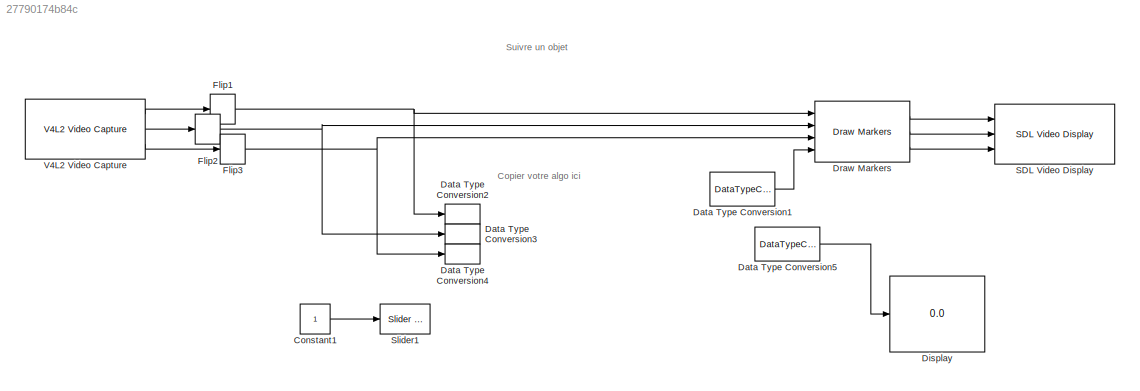
MODEL slx_27790174b84c
KIND model
CONFIG AbsTol = auto
CONFIG EnableMultiTasking = on
CONFIG FixedStep = auto
CONFIG MaxStep = auto
CONFIG MinStep = auto
CONFIG RelTol = 1e-3
CONFIG SampleTimeConstraint = Unconstrained
CONFIG Solver = ode45
CONFIG SolverName = ode45
CONFIG StartTime = 0.0
CONFIG StopTime = inf
BLOCK [Constant] Constant1
  OutDataTypeStr = uint8
  SampleTime = 0.1
BLOCK [DataTypeConversion] Data Type Conversion1
  RndMeth = Floor
  SaturateOnIntegerOverflow = off
BLOCK [DataTypeConversion] Data Type Conversion2
  OutDataTypeStr = double
  RndMeth = Floor
  SaturateOnIntegerOverflow = off
BLOCK [DataTypeConversion] Data Type Conversion3
  OutDataTypeStr = double
  RndMeth = Floor
  SaturateOnIntegerOverflow = off
BLOCK [DataTypeConversion] Data Type Conversion4
  OutDataTypeStr = double
  RndMeth = Floor
  SaturateOnIntegerOverflow = off
BLOCK [DataTypeConversion] Data Type Conversion5
  OutDataTypeStr = uint16
  RndMeth = Floor
  SaturateOnIntegerOverflow = off
BLOCK [Display] Display
  Decimation = 1
  Ports = [1]
BLOCK [Reference] Draw Markers  REF=visiontextngfix/Draw Markers
  Ports = [4, 3]
  SourceBlock = visiontextngfix/Draw Markers
  SourceProductBaseCode = VP
  SourceType = Draw Markers
BLOCK [DSPFlip] Flip1
  dim = Rows
BLOCK [DSPFlip] Flip2
  dim = Rows
BLOCK [DSPFlip] Flip3
  dim = Rows
BLOCK [Reference] SDL Video Display  REF=embdlinuxlib/SDL Video Display
  Ports = [3]
  SourceBlock = embdlinuxlib/SDL Video Display
  SourceProductBaseCode = SC_BEAGLEBONE_BLUE,RASPPI
  SourceType = SDL Video Display
BLOCK [Reference] Slider1  REF=simulink/Math
Operations/Slider
Gain
  Ports = [1, 1]
  SourceBlock = simulink/Math\nOperations/Slider\nGain
  SourceProductBaseCode = SL
  SourceType = Slider Gain
BLOCK [Reference] V4L2 Video Capture  REF=embdlinuxlib/V4L2 Video Capture
  Ports = [0, 3]
  SourceBlock = embdlinuxlib/V4L2 Video Capture
  SourceProductBaseCode = SC_BEAGLEBONE_BLUE,RASPPI
  SourceType = V4L2 Video Capture
ANNOTATION (root): Copier votre algo ici
ANNOTATION (root): Suivre un objet
LINE Constant1:1 -> Slider1:1
LINE Data Type Conversion1:1 -> Draw Markers:4
LINE Data Type Conversion5:1 -> Display:1
LINE Draw Markers:1 -> SDL Video Display:1
LINE Draw Markers:2 -> SDL Video Display:2
LINE Draw Markers:3 -> SDL Video Display:3
NET Flip1:1 -> Data Type Conversion2:1, Draw Markers:1
NET Flip2:1 -> Data Type Conversion3:1, Draw Markers:2
NET Flip3:1 -> Data Type Conversion4:1, Draw Markers:3
LINE V4L2 Video Capture:1 -> Flip1:1
LINE V4L2 Video Capture:2 -> Flip2:1
LINE V4L2 Video Capture:3 -> Flip3:1
note: NET lines group one-source signal fan-out (src -> all destinations, sorted); 1:1 wires keep LINE
